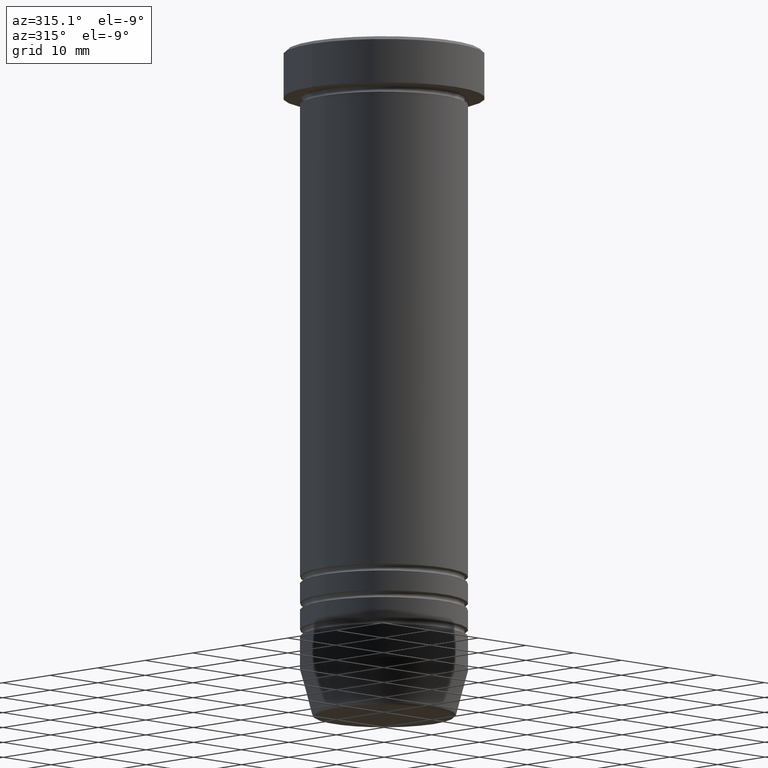
[diagram: clean part render]
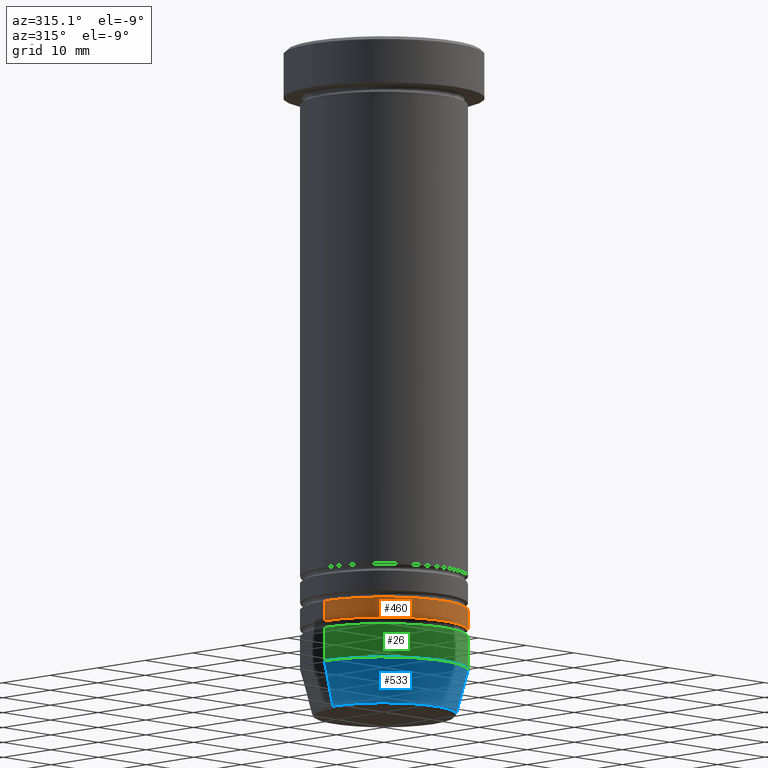
[diagram: same view with three faces highlighted in distinct colors, each labeled with its STEP entity id]
A machine part, auxiliary view with three faces highlighted in distinct colors.
Their STEP definitions:

[orange] entity #460 — the highlighted cylindrical surface (partial cylindrical patch) has radius 12.5 mm, axis along (-0, -0, 1).
#14 = VECTOR ( 'NONE', #613, 1000.000000000000000 ) ;
#22 = CARTESIAN_POINT ( 'NONE',  ( 12.49999999999999289, 0.000000000000000000, -87.00000000000000000 ) ) ;
#39 = LINE ( 'NONE', #59, #14 ) ;
#47 = CIRCLE ( 'NONE', #798, 12.49999999999999289 ) ;
#59 = CARTESIAN_POINT ( 'NONE',  ( -12.49999999999999645, 1.530808498934191127E-15, 0.000000000000000000 ) ) ;
#60 = ORIENTED_EDGE ( 'NONE', *, *, #892, .F. ) ;
#67 = CARTESIAN_POINT ( 'NONE',  ( 0.000000000000000000, 0.000000000000000000, 0.000000000000000000 ) ) ;
#75 = EDGE_CURVE ( 'NONE', #938, #898, #123, .T. ) ;
#83 = DIRECTION ( 'NONE',  ( -0.000000000000000000, -0.000000000000000000, 1.000000000000000000 ) ) ;
#86 = CYLINDRICAL_SURFACE ( 'NONE', #854, 12.49999999999999645 ) ;
#108 = ORIENTED_EDGE ( 'NONE', *, *, #418, .T. ) ;
#123 = CIRCLE ( 'NONE', #434, 12.50000000000000000 ) ;
#147 = CARTESIAN_POINT ( 'NONE',  ( 12.49999999999999645, 0.000000000000000000, 0.000000000000000000 ) ) ;
#151 = CARTESIAN_POINT ( 'NONE',  ( 0.000000000000000000, 0.000000000000000000, -87.00000000000000000 ) ) ;
#168 = DIRECTION ( 'NONE',  ( 1.000000000000000000, 0.000000000000000000, 0.000000000000000000 ) ) ;
#212 = ORIENTED_EDGE ( 'NONE', *, *, #1060, .T. ) ;
#234 = DIRECTION ( 'NONE',  ( 1.000000000000000000, 0.000000000000000000, 0.000000000000000000 ) ) ;
#288 = ORIENTED_EDGE ( 'NONE', *, *, #75, .F. ) ;
#344 = DIRECTION ( 'NONE',  ( -0.000000000000000000, -0.000000000000000000, 1.000000000000000000 ) ) ;
#384 = VECTOR ( 'NONE', #965, 1000.000000000000000 ) ;
#418 = EDGE_CURVE ( 'NONE', #585, #898, #639, .T. ) ;
#434 = AXIS2_PLACEMENT_3D ( 'NONE', #499, #344, #598 ) ;
#455 = EDGE_LOOP ( 'NONE', ( #60, #212, #108, #288 ) ) ;
#460 = ADVANCED_FACE ( 'NONE', ( #810 ), #86, .T. ) ;
#463 = CARTESIAN_POINT ( 'NONE',  ( -12.50000000000000000, 1.530808498934191521E-15, -83.99999999999998579 ) ) ;
#482 = VERTEX_POINT ( 'NONE', #989 ) ;
#486 = DIRECTION ( 'NONE',  ( -0.000000000000000000, -0.000000000000000000, 1.000000000000000000 ) ) ;
#499 = CARTESIAN_POINT ( 'NONE',  ( 0.000000000000000000, 0.000000000000000000, -83.99999999999998579 ) ) ;
#585 = VERTEX_POINT ( 'NONE', #22 ) ;
#598 = DIRECTION ( 'NONE',  ( 1.000000000000000000, 0.000000000000000000, 0.000000000000000000 ) ) ;
#613 = DIRECTION ( 'NONE',  ( -0.000000000000000000, -0.000000000000000000, 1.000000000000000000 ) ) ;
#639 = LINE ( 'NONE', #147, #384 ) ;
#791 = CARTESIAN_POINT ( 'NONE',  ( 12.50000000000000000, 0.000000000000000000, -83.99999999999998579 ) ) ;
#798 = AXIS2_PLACEMENT_3D ( 'NONE', #151, #83, #234 ) ;
#810 = FACE_OUTER_BOUND ( 'NONE', #455, .T. ) ;
#854 = AXIS2_PLACEMENT_3D ( 'NONE', #67, #486, #168 ) ;
#892 = EDGE_CURVE ( 'NONE', #482, #938, #39, .T. ) ;
#898 = VERTEX_POINT ( 'NONE', #791 ) ;
#938 = VERTEX_POINT ( 'NONE', #463 ) ;
#965 = DIRECTION ( 'NONE',  ( -0.000000000000000000, -0.000000000000000000, 1.000000000000000000 ) ) ;
#989 = CARTESIAN_POINT ( 'NONE',  ( -12.49999999999999289, 1.530808498934190930E-15, -87.00000000000000000 ) ) ;
#1060 = EDGE_CURVE ( 'NONE', #482, #585, #47, .T. ) ;

[blue] entity #533 — the highlighted conical surface has half-angle 15 deg.
#12 = AXIS2_PLACEMENT_3D ( 'NONE', #476, #941, #225 ) ;
#24 = VERTEX_POINT ( 'NONE', #1002 ) ;
#154 = VERTEX_POINT ( 'NONE', #365 ) ;
#156 = EDGE_CURVE ( 'NONE', #286, #154, #263, .T. ) ;
#159 = LINE ( 'NONE', #816, #182 ) ;
#182 = VECTOR ( 'NONE', #980, 1000.000000000000000 ) ;
#225 = DIRECTION ( 'NONE',  ( -1.000000000000000000, 0.000000000000000000, 0.000000000000000000 ) ) ;
#263 = CIRCLE ( 'NONE', #12, 10.72365507213718772 ) ;
#284 = CARTESIAN_POINT ( 'NONE',  ( 0.000000000000000000, 0.000000000000000000, -99.99999999999998579 ) ) ;
#285 = VECTOR ( 'NONE', #393, 1000.000000000000000 ) ;
#286 = VERTEX_POINT ( 'NONE', #824 ) ;
#343 = EDGE_LOOP ( 'NONE', ( #832, #648, #907, #742 ) ) ;
#345 = FACE_OUTER_BOUND ( 'NONE', #343, .T. ) ;
#365 = CARTESIAN_POINT ( 'NONE',  ( 10.72365507213718772, 0.000000000000000000, -99.62940952255125637 ) ) ;
#366 = AXIS2_PLACEMENT_3D ( 'NONE', #284, #930, #1018 ) ;
#393 = DIRECTION ( 'NONE',  ( -0.2588190451025213501, 3.169619151431772337E-17, 0.9659258262890680902 ) ) ;
#403 = LINE ( 'NONE', #1056, #285 ) ;
#464 = DIRECTION ( 'NONE',  ( -0.000000000000000000, -0.000000000000000000, 1.000000000000000000 ) ) ;
#476 = CARTESIAN_POINT ( 'NONE',  ( 0.000000000000000000, 0.000000000000000000, -99.62940952255125637 ) ) ;
#495 = EDGE_CURVE ( 'NONE', #154, #24, #159, .T. ) ;
#533 = ADVANCED_FACE ( 'NONE', ( #345 ), #887, .T. ) ;
#539 = DIRECTION ( 'NONE',  ( 1.000000000000000000, 0.000000000000000000, 0.000000000000000000 ) ) ;
#648 = ORIENTED_EDGE ( 'NONE', *, *, #156, .T. ) ;
#653 = EDGE_CURVE ( 'NONE', #960, #24, #923, .T. ) ;
#695 = CARTESIAN_POINT ( 'NONE',  ( -12.50000000000000000, 1.530808498934191521E-15, -93.00000000000000000 ) ) ;
#700 = CARTESIAN_POINT ( 'NONE',  ( 0.000000000000000000, 0.000000000000000000, -93.00000000000000000 ) ) ;
#721 = EDGE_CURVE ( 'NONE', #286, #960, #403, .T. ) ;
#742 = ORIENTED_EDGE ( 'NONE', *, *, #653, .F. ) ;
#816 = CARTESIAN_POINT ( 'NONE',  ( 10.62435565298213902, 0.000000000000000000, -99.99999999999998579 ) ) ;
#824 = CARTESIAN_POINT ( 'NONE',  ( -10.72365507213718772, 1.422038742429750121E-15, -99.62940952255125637 ) ) ;
#832 = ORIENTED_EDGE ( 'NONE', *, *, #721, .F. ) ;
#887 = CONICAL_SURFACE ( 'NONE', #366, 10.62435565298213902, 0.2617993877991500740 ) ;
#906 = AXIS2_PLACEMENT_3D ( 'NONE', #700, #464, #539 ) ;
#907 = ORIENTED_EDGE ( 'NONE', *, *, #495, .T. ) ;
#923 = CIRCLE ( 'NONE', #906, 12.50000000000000000 ) ;
#930 = DIRECTION ( 'NONE',  ( -0.000000000000000000, -0.000000000000000000, 1.000000000000000000 ) ) ;
#941 = DIRECTION ( 'NONE',  ( -0.000000000000000000, -0.000000000000000000, 1.000000000000000000 ) ) ;
#960 = VERTEX_POINT ( 'NONE', #695 ) ;
#980 = DIRECTION ( 'NONE',  ( 0.2588190451025213501, 0.000000000000000000, 0.9659258262890680902 ) ) ;
#1002 = CARTESIAN_POINT ( 'NONE',  ( 12.50000000000000000, 0.000000000000000000, -93.00000000000000000 ) ) ;
#1018 = DIRECTION ( 'NONE',  ( 1.000000000000000000, 0.000000000000000000, 0.000000000000000000 ) ) ;
#1056 = CARTESIAN_POINT ( 'NONE',  ( -10.62435565298213902, 1.301108314342766318E-15, -99.99999999999998579 ) ) ;

[green] entity #26 — the highlighted cylindrical surface (partial cylindrical patch) has radius 12.5 mm, axis along (-0, -0, 1).
#17 = EDGE_LOOP ( 'NONE', ( #222, #294, #981, #516 ) ) ;
#24 = VERTEX_POINT ( 'NONE', #1002 ) ;
#26 = ADVANCED_FACE ( 'NONE', ( #589 ), #172, .T. ) ;
#51 = VERTEX_POINT ( 'NONE', #341 ) ;
#105 = DIRECTION ( 'NONE',  ( 1.000000000000000000, 0.000000000000000000, 0.000000000000000000 ) ) ;
#139 = AXIS2_PLACEMENT_3D ( 'NONE', #929, #193, #105 ) ;
#161 = CARTESIAN_POINT ( 'NONE',  ( 12.50000000000000000, 0.000000000000000000, 0.000000000000000000 ) ) ;
#172 = CYLINDRICAL_SURFACE ( 'NONE', #487, 12.50000000000000000 ) ;
#193 = DIRECTION ( 'NONE',  ( -0.000000000000000000, -0.000000000000000000, 1.000000000000000000 ) ) ;
#206 = EDGE_CURVE ( 'NONE', #562, #51, #506, .T. ) ;
#222 = ORIENTED_EDGE ( 'NONE', *, *, #789, .F. ) ;
#243 = DIRECTION ( 'NONE',  ( -0.000000000000000000, -0.000000000000000000, 1.000000000000000000 ) ) ;
#250 = VECTOR ( 'NONE', #243, 1000.000000000000000 ) ;
#258 = EDGE_CURVE ( 'NONE', #24, #51, #572, .T. ) ;
#294 = ORIENTED_EDGE ( 'NONE', *, *, #653, .T. ) ;
#336 = CARTESIAN_POINT ( 'NONE',  ( -12.50000000000000000, 1.530808498934191521E-15, 0.000000000000000000 ) ) ;
#341 = CARTESIAN_POINT ( 'NONE',  ( 12.50000000000000000, 0.000000000000000000, -88.00000000000000000 ) ) ;
#358 = CARTESIAN_POINT ( 'NONE',  ( -12.50000000000000000, 1.530808498934191521E-15, -88.00000000000000000 ) ) ;
#426 = DIRECTION ( 'NONE',  ( 1.000000000000000000, 0.000000000000000000, 0.000000000000000000 ) ) ;
#464 = DIRECTION ( 'NONE',  ( -0.000000000000000000, -0.000000000000000000, 1.000000000000000000 ) ) ;
#483 = DIRECTION ( 'NONE',  ( -0.000000000000000000, -0.000000000000000000, 1.000000000000000000 ) ) ;
#487 = AXIS2_PLACEMENT_3D ( 'NONE', #829, #748, #426 ) ;
#506 = CIRCLE ( 'NONE', #139, 12.50000000000000000 ) ;
#516 = ORIENTED_EDGE ( 'NONE', *, *, #206, .F. ) ;
#539 = DIRECTION ( 'NONE',  ( 1.000000000000000000, 0.000000000000000000, 0.000000000000000000 ) ) ;
#562 = VERTEX_POINT ( 'NONE', #358 ) ;
#572 = LINE ( 'NONE', #161, #849 ) ;
#581 = LINE ( 'NONE', #336, #250 ) ;
#589 = FACE_OUTER_BOUND ( 'NONE', #17, .T. ) ;
#653 = EDGE_CURVE ( 'NONE', #960, #24, #923, .T. ) ;
#695 = CARTESIAN_POINT ( 'NONE',  ( -12.50000000000000000, 1.530808498934191521E-15, -93.00000000000000000 ) ) ;
#700 = CARTESIAN_POINT ( 'NONE',  ( 0.000000000000000000, 0.000000000000000000, -93.00000000000000000 ) ) ;
#748 = DIRECTION ( 'NONE',  ( -0.000000000000000000, -0.000000000000000000, 1.000000000000000000 ) ) ;
#789 = EDGE_CURVE ( 'NONE', #960, #562, #581, .T. ) ;
#829 = CARTESIAN_POINT ( 'NONE',  ( 0.000000000000000000, 0.000000000000000000, 0.000000000000000000 ) ) ;
#849 = VECTOR ( 'NONE', #483, 1000.000000000000000 ) ;
#906 = AXIS2_PLACEMENT_3D ( 'NONE', #700, #464, #539 ) ;
#923 = CIRCLE ( 'NONE', #906, 12.50000000000000000 ) ;
#929 = CARTESIAN_POINT ( 'NONE',  ( 0.000000000000000000, 0.000000000000000000, -88.00000000000000000 ) ) ;
#960 = VERTEX_POINT ( 'NONE', #695 ) ;
#981 = ORIENTED_EDGE ( 'NONE', *, *, #258, .T. ) ;
#1002 = CARTESIAN_POINT ( 'NONE',  ( 12.50000000000000000, 0.000000000000000000, -93.00000000000000000 ) ) ;